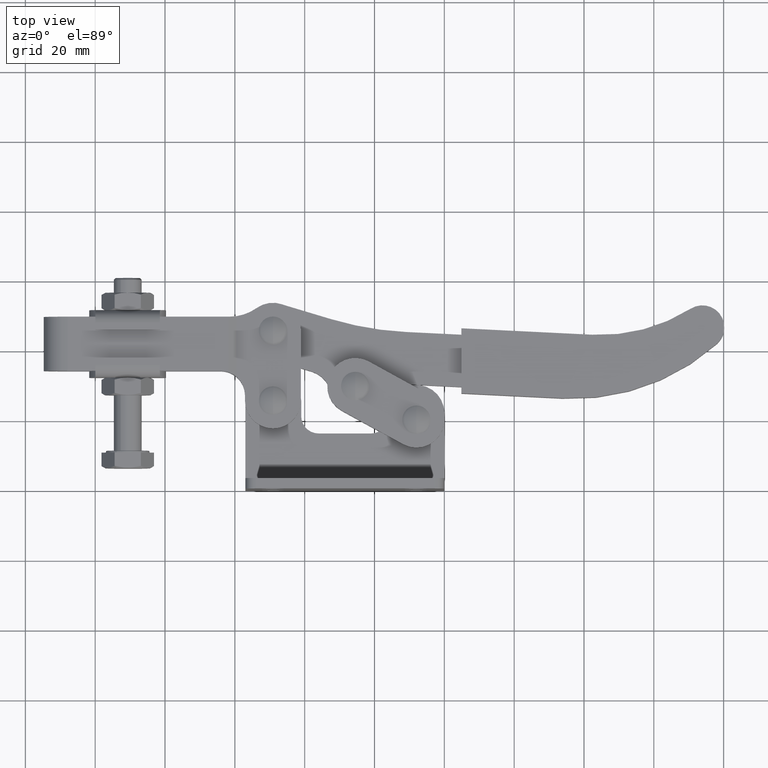
[diagram: clean part render]
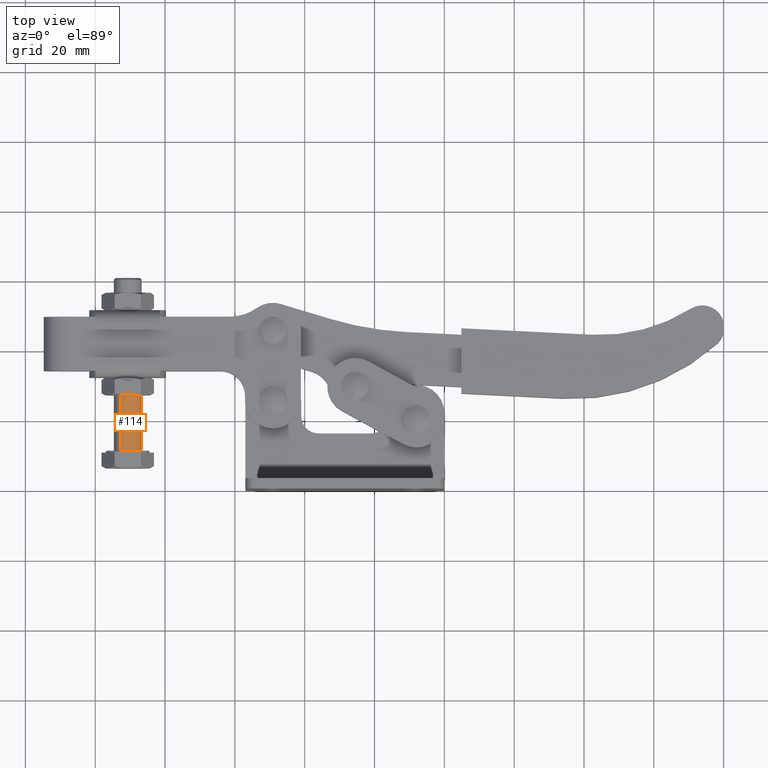
[diagram: same view with one face highlighted and labeled with its STEP entity id]
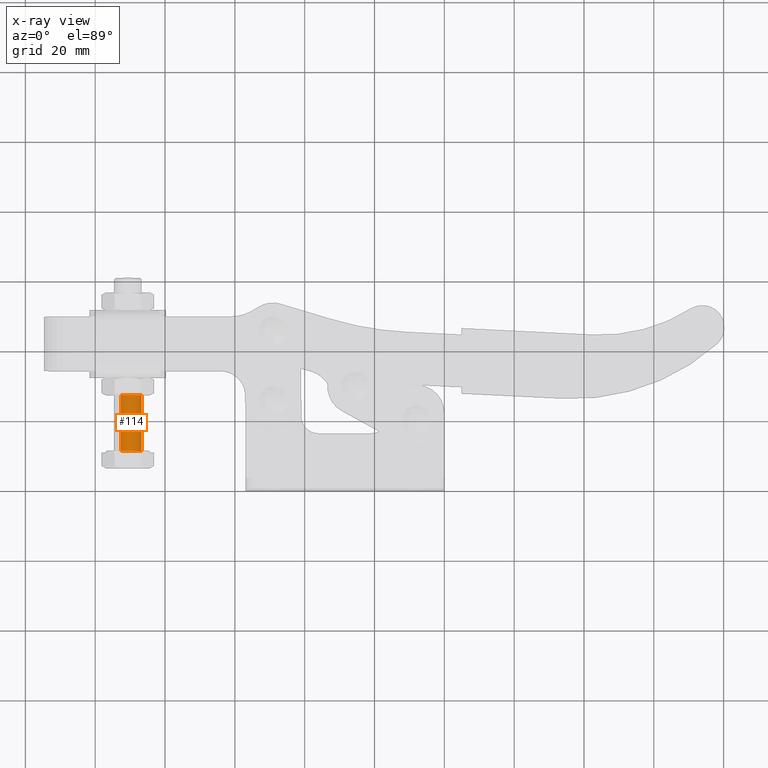
[diagram: x-ray of the same camera — body ghosted, the highlighted face saturated]
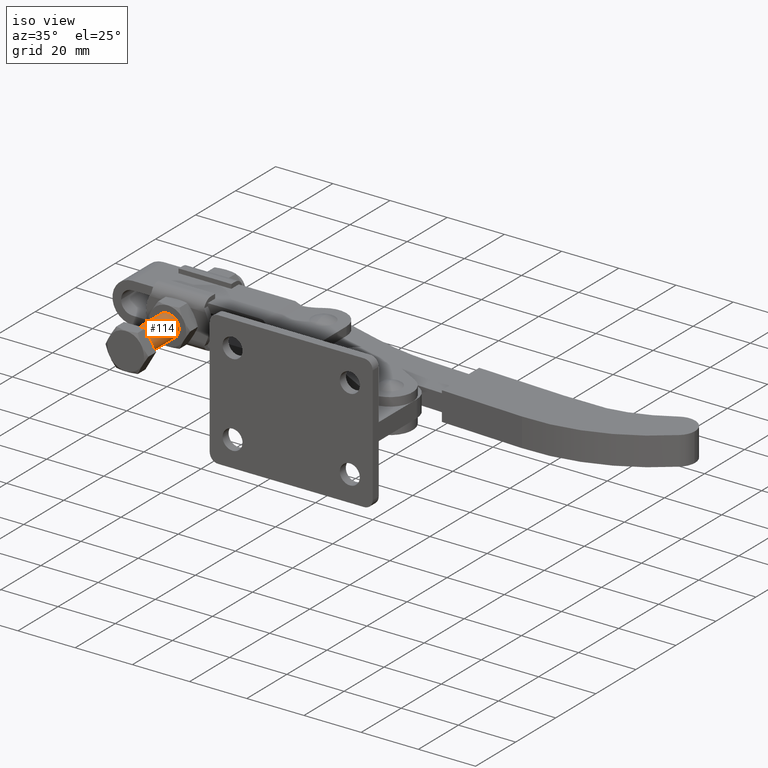
[diagram: same view with one face highlighted and labeled with its STEP entity id]
A machine part, top view. The second image highlights one B-rep face of the part: STEP entity #114.
The next image is the same camera in x-ray: the body ghosted, the highlighted face saturated — about 0% of this face is hidden behind the body in this view.
A second angle (iso view) of the same face is appended — the face is thin or edge-on in the first view.
In plain terms, the highlighted cylindrical surface (edge-blend (fillet) strip) has radius 4 mm, axis along (0, -1, 0).
Its self-contained STEP definition (entity closure, byte-faithful):
#114 = ADVANCED_FACE ( 'NONE', ( #4969 ), #3911, .T. ) ;
#279 = AXIS2_PLACEMENT_3D ( 'NONE', #3136, #3473, #5426 ) ;
#356 = CARTESIAN_POINT ( 'NONE',  ( -94.37123858054452800, 11.15412871179916400, 3.464101615137765500 ) ) ;
#1291 = CARTESIAN_POINT ( 'NONE',  ( -92.37123858054452800, 27.07983376949361800, 3.841726754523900400E-015 ) ) ;
#1342 = LINE ( 'NONE', #2686, #3064 ) ;
#1393 = CIRCLE ( 'NONE', #279, 4.000000000000000900 ) ;
#1765 = VERTEX_POINT ( 'NONE', #356 ) ;
#2011 = DIRECTION ( 'NONE',  ( 1.000000000000000000, 0.0000000000000000000, 0.0000000000000000000 ) ) ;
#2225 = ORIENTED_EDGE ( 'NONE', *, *, #8829, .T. ) ;
#2401 = DIRECTION ( 'NONE',  ( 0.5000000000000003300, 0.0000000000000000000, -0.8660254037844384900 ) ) ;
#2618 = AXIS2_PLACEMENT_3D ( 'NONE', #3695, #5730, #2401 ) ;
#2686 = CARTESIAN_POINT ( 'NONE',  ( -90.37123858054452800, 60.65412871179916000, -3.464101615137768200 ) ) ;
#2952 = VERTEX_POINT ( 'NONE', #8536 ) ;
#3001 = CARTESIAN_POINT ( 'NONE',  ( -90.37123858054452800, 11.15412871179916000, -3.464101615137743300 ) ) ;
#3064 = VECTOR ( 'NONE', #4277, 1000.000000000000000 ) ;
#3082 = VECTOR ( 'NONE', #3114, 1000.000000000000000 ) ;
#3114 = DIRECTION ( 'NONE',  ( 1.625057668072418000E-017, -1.000000000000000000, 5.100760457716135700E-016 ) ) ;
#3136 = CARTESIAN_POINT ( 'NONE',  ( -92.37123858054452800, 11.15412871179916200, 1.196504741647767500E-014 ) ) ;
#3231 = AXIS2_PLACEMENT_3D ( 'NONE', #1291, #6415, #2011 ) ;
#3473 = DIRECTION ( 'NONE',  ( -1.625057668072418000E-017, 1.000000000000000000, -5.100760457716135700E-016 ) ) ;
#3695 = CARTESIAN_POINT ( 'NONE',  ( -92.37123858054452800, 60.65412871179916000, -1.328371684921719700E-014 ) ) ;
#3771 = ORIENTED_EDGE ( 'NONE', *, *, #9391, .F. ) ;
#3911 = CYLINDRICAL_SURFACE ( 'NONE', #2618, 4.000000000000000900 ) ;
#4277 = DIRECTION ( 'NONE',  ( 1.625057668072418000E-017, -1.000000000000000000, 5.100760457716135700E-016 ) ) ;
#4640 = EDGE_CURVE ( 'NONE', #1765, #8759, #1393, .T. ) ;
#4969 = FACE_OUTER_BOUND ( 'NONE', #8033, .T. ) ;
#5272 = CIRCLE ( 'NONE', #3231, 4.000000000000003600 ) ;
#5426 = DIRECTION ( 'NONE',  ( -0.5000000000000003300, 4.336808689942016700E-016, 0.8660254037844384900 ) ) ;
#5570 = ORIENTED_EDGE ( 'NONE', *, *, #5976, .T. ) ;
#5730 = DIRECTION ( 'NONE',  ( 1.625057668072418000E-017, -1.000000000000000000, 5.100760457716135700E-016 ) ) ;
#5976 = EDGE_CURVE ( 'NONE', #2952, #9216, #5272, .T. ) ;
#6415 = DIRECTION ( 'NONE',  ( -5.551115123125787600E-017, -1.000000000000000000, -1.821459649775638500E-017 ) ) ;
#6517 = ORIENTED_EDGE ( 'NONE', *, *, #4640, .T. ) ;
#7017 = CARTESIAN_POINT ( 'NONE',  ( -94.37123858054452800, 60.65412871179916000, 3.464101615137742000 ) ) ;
#7283 = CARTESIAN_POINT ( 'NONE',  ( -94.37123858054452800, 27.07983376949361800, 3.464101615137758800 ) ) ;
#8033 = EDGE_LOOP ( 'NONE', ( #5570, #2225, #6517, #3771 ) ) ;
#8536 = CARTESIAN_POINT ( 'NONE',  ( -90.37123858054452800, 27.07983376949361800, -3.464101615137749100 ) ) ;
#8714 = LINE ( 'NONE', #7017, #3082 ) ;
#8759 = VERTEX_POINT ( 'NONE', #3001 ) ;
#8829 = EDGE_CURVE ( 'NONE', #9216, #1765, #8714, .T. ) ;
#9216 = VERTEX_POINT ( 'NONE', #7283 ) ;
#9391 = EDGE_CURVE ( 'NONE', #2952, #8759, #1342, .T. ) ;